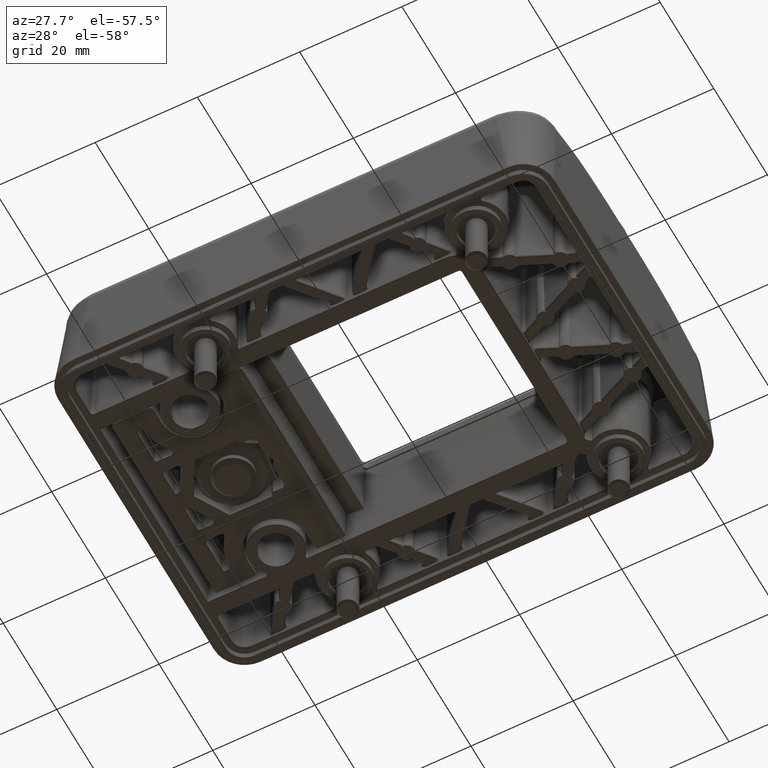
[diagram: clean part render]
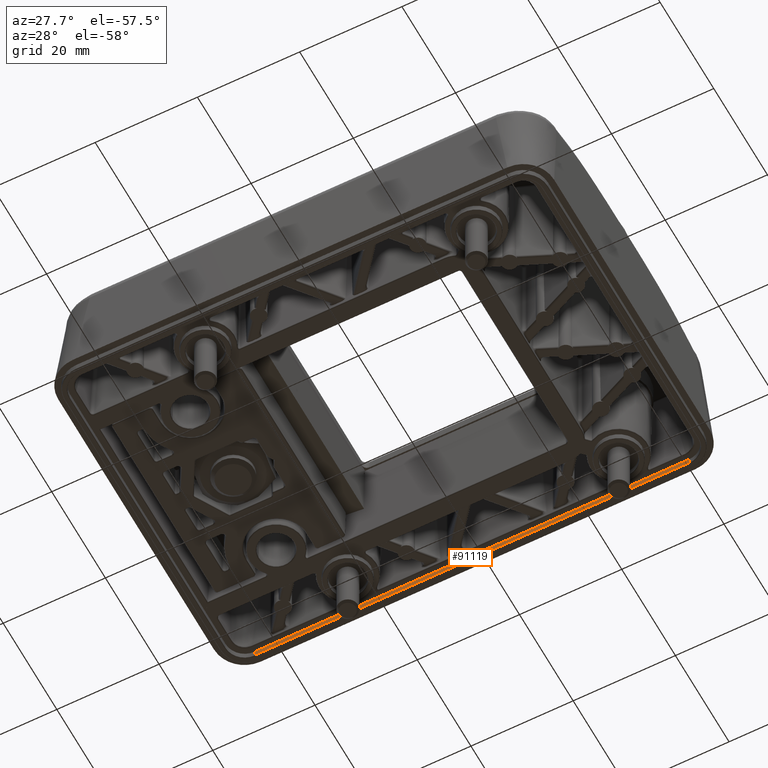
[diagram: same view with one face highlighted and labeled with its STEP entity id]
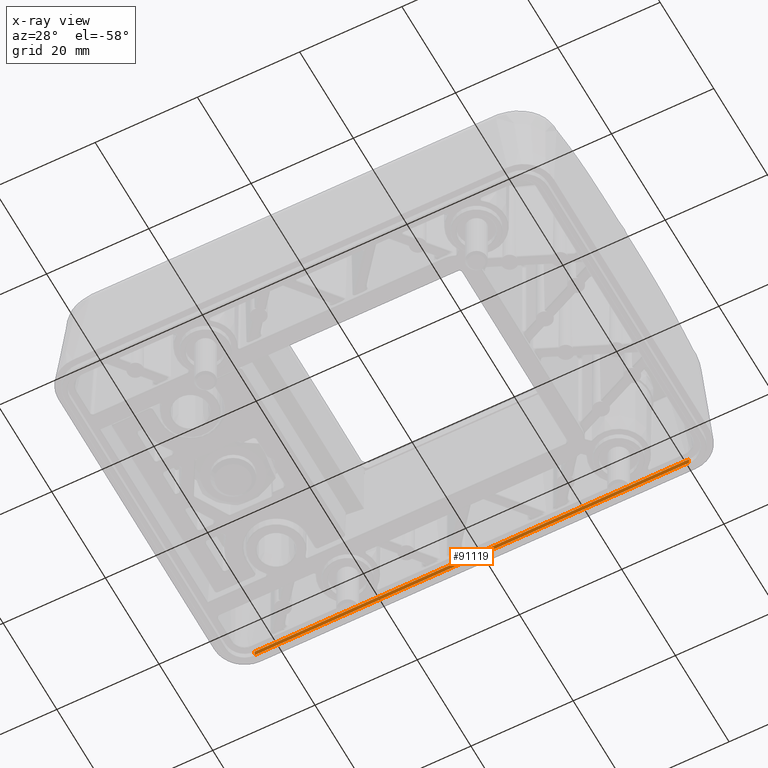
[diagram: x-ray of the same camera — body ghosted, the highlighted face saturated]
A machine part, auxiliary view. The second image highlights one B-rep face of the part: STEP entity #91119.
The next image is the same camera in x-ray: the body ghosted, the highlighted face saturated — about 0% of this face is hidden behind the body in this view.
In plain terms, the highlighted planar face has unit normal (-0, -0.9994, -0.0349).
Its self-contained STEP definition (entity closure, byte-faithful):
#82585=CARTESIAN_POINT('',(-47.980102976360008,32.70634924589001,-20.000000000000004));
#82586=VERTEX_POINT('',#82585);
#82594=CARTESIAN_POINT('',(36.980103428320007,32.706348830380009,-20.000000000000004));
#82595=VERTEX_POINT('',#82594);
#82596=CARTESIAN_POINT('',(-47.980102976360008,32.70634924589001,-20.000000000000004));
#82597=DIRECTION('',(1.0,-4.890614E-009,0.0));
#82598=VECTOR('',#82597,84.960206404680022);
#82599=LINE('',#82596,#82598);
#82600=EDGE_CURVE('',#82586,#82595,#82599,.T.);
#90843=CARTESIAN_POINT('',(36.980103428490011,32.743259381800009,-21.056979899340007));
#90844=VERTEX_POINT('',#90843);
#90869=CARTESIAN_POINT('',(-47.980102976180021,32.743259797240007,-21.056979897290006));
#90870=VERTEX_POINT('',#90869);
#90871=CARTESIAN_POINT('',(36.980103428490011,32.743259381800009,-21.056979899340007));
#90872=DIRECTION('',(-1.0,4.890614E-009,0.0));
#90873=VECTOR('',#90872,84.960206404670018);
#90874=LINE('',#90871,#90873);
#90875=EDGE_CURVE('',#90844,#90870,#90874,.T.);
#91093=CARTESIAN_POINT('',(36.980103428320007,32.706348830380009,-20.000000000000004));
#91094=DIRECTION('',(1.645108E-010,0.034899496702514,-0.999390827019095));
#91095=VECTOR('',#91094,1.057624175411538);
#91096=LINE('',#91093,#91095);
#91097=EDGE_CURVE('',#82595,#90844,#91096,.T.);
#91103=CARTESIAN_POINT('',(-52.228113296603581,32.704503739094278,-19.947151005032921));
#91104=DIRECTION('',(-4.887635E-009,-0.999390827019096,-0.0348994967025));
#91105=DIRECTION('',(0.0,0.0348994967025,-0.999390827019096));
#91106=AXIS2_PLACEMENT_3D('',#91103,#91104,#91105);
#91107=PLANE('',#91106);
#91108=ORIENTED_EDGE('',*,*,#91097,.F.);
#91109=ORIENTED_EDGE('',*,*,#82600,.F.);
#91110=CARTESIAN_POINT('',(-47.980102976360008,32.70634924589001,-20.000000000000004));
#91111=DIRECTION('',(1.917199E-010,0.034899496702499,-0.999390827019096));
#91112=VECTOR('',#91111,1.05762417336034);
#91113=LINE('',#91110,#91112);
#91114=EDGE_CURVE('',#82586,#90870,#91113,.T.);
#91115=ORIENTED_EDGE('',*,*,#91114,.T.);
#91116=ORIENTED_EDGE('',*,*,#90875,.F.);
#91117=EDGE_LOOP('',(#91108,#91109,#91115,#91116));
#91118=FACE_OUTER_BOUND('',#91117,.T.);
#91119=ADVANCED_FACE('',(#91118),#91107,.T.);